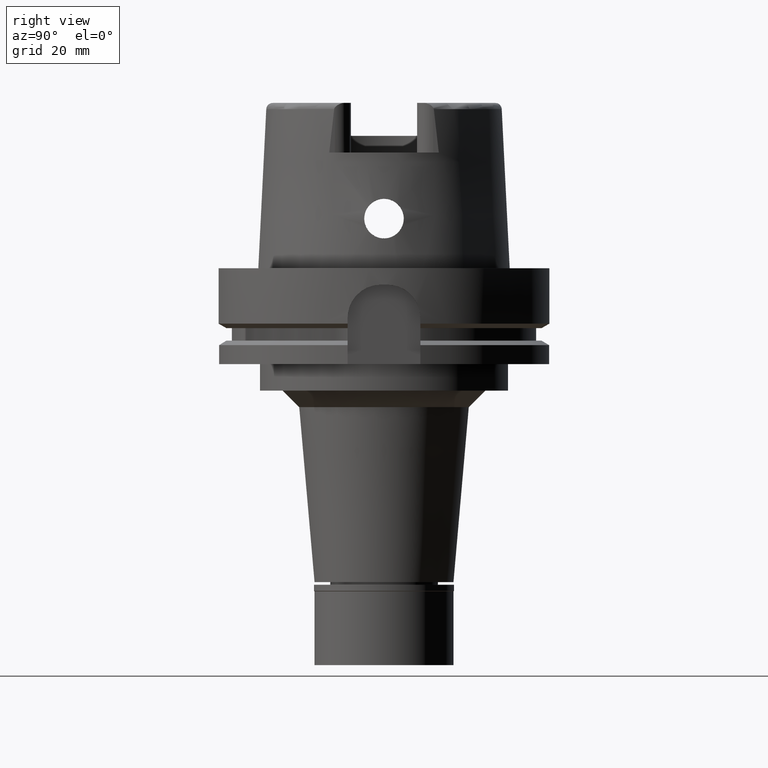
[diagram: clean part render]
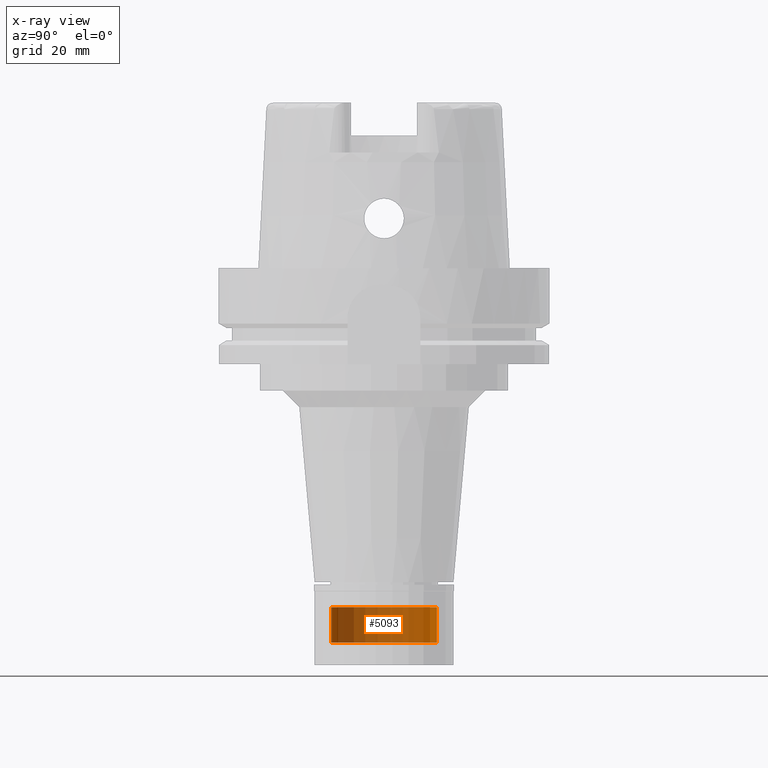
[diagram: x-ray — body ghosted, one internal face saturated and labeled with its STEP entity id]
A machine part, right view, then the same camera in x-ray: the body is ghosted and one INTERNAL B-rep face — a face not visible from any outside direction — is saturated and labeled: STEP entity #5093.
In plain terms, the highlighted cylindrical surface (partial cylindrical patch) has radius 16 mm, axis along (0, 0, -1).
Its self-contained STEP definition (entity closure, byte-faithful):
#304 = AXIS2_PLACEMENT_3D ( 'NONE', #5199, #1337, #913 ) ;
#469 = EDGE_CURVE ( 'NONE', #791, #3298, #2522, .T. ) ;
#522 = VERTEX_POINT ( 'NONE', #538 ) ;
#538 = CARTESIAN_POINT ( 'NONE',  ( 0.0000000000000000000, 16.00000000000000000, -6.799999999999999822 ) ) ;
#755 = CARTESIAN_POINT ( 'NONE',  ( 0.0000000000000000000, 0.0000000000000000000, 0.0000000000000000000 ) ) ;
#791 = VERTEX_POINT ( 'NONE', #4590 ) ;
#827 = ORIENTED_EDGE ( 'NONE', *, *, #4766, .F. ) ;
#860 = LINE ( 'NONE', #2897, #5078 ) ;
#913 = DIRECTION ( 'NONE',  ( 0.0000000000000000000, -1.000000000000000000, 0.0000000000000000000 ) ) ;
#980 = CARTESIAN_POINT ( 'NONE',  ( 0.0000000000000000000, -16.00000000000000000, -6.799999999999999822 ) ) ;
#1107 = ORIENTED_EDGE ( 'NONE', *, *, #2267, .T. ) ;
#1337 = DIRECTION ( 'NONE',  ( 0.0000000000000000000, 0.0000000000000000000, -1.000000000000000000 ) ) ;
#1391 = DIRECTION ( 'NONE',  ( 0.0000000000000000000, 0.0000000000000000000, 1.000000000000000000 ) ) ;
#1474 = CARTESIAN_POINT ( 'NONE',  ( 0.0000000000000000000, 16.00000000000000000, -17.50000000000000000 ) ) ;
#1752 = DIRECTION ( 'NONE',  ( 0.0000000000000000000, 0.0000000000000000000, 1.000000000000000000 ) ) ;
#1929 = EDGE_CURVE ( 'NONE', #522, #4502, #5261, .T. ) ;
#1950 = ORIENTED_EDGE ( 'NONE', *, *, #469, .T. ) ;
#2035 = FACE_OUTER_BOUND ( 'NONE', #2814, .T. ) ;
#2267 = EDGE_CURVE ( 'NONE', #3298, #522, #860, .T. ) ;
#2522 = CIRCLE ( 'NONE', #304, 16.00000000000000000 ) ;
#2606 = VECTOR ( 'NONE', #4748, 1000.000000000000000 ) ;
#2611 = AXIS2_PLACEMENT_3D ( 'NONE', #755, #2840, #4136 ) ;
#2802 = AXIS2_PLACEMENT_3D ( 'NONE', #5207, #1391, #4823 ) ;
#2814 = EDGE_LOOP ( 'NONE', ( #4060, #827, #1950, #1107 ) ) ;
#2840 = DIRECTION ( 'NONE',  ( 0.0000000000000000000, 0.0000000000000000000, -1.000000000000000000 ) ) ;
#2897 = CARTESIAN_POINT ( 'NONE',  ( 0.0000000000000000000, 16.00000000000000000, -17.50000000000000000 ) ) ;
#3298 = VERTEX_POINT ( 'NONE', #1474 ) ;
#3449 = LINE ( 'NONE', #4770, #2606 ) ;
#4060 = ORIENTED_EDGE ( 'NONE', *, *, #1929, .T. ) ;
#4136 = DIRECTION ( 'NONE',  ( 0.0000000000000000000, -1.000000000000000000, 0.0000000000000000000 ) ) ;
#4502 = VERTEX_POINT ( 'NONE', #980 ) ;
#4590 = CARTESIAN_POINT ( 'NONE',  ( 0.0000000000000000000, -16.00000000000000000, -17.50000000000000000 ) ) ;
#4748 = DIRECTION ( 'NONE',  ( 0.0000000000000000000, 0.0000000000000000000, 1.000000000000000000 ) ) ;
#4766 = EDGE_CURVE ( 'NONE', #791, #4502, #3449, .T. ) ;
#4770 = CARTESIAN_POINT ( 'NONE',  ( 0.0000000000000000000, -16.00000000000000000, -17.50000000000000000 ) ) ;
#4823 = DIRECTION ( 'NONE',  ( 0.0000000000000000000, 1.000000000000000000, 0.0000000000000000000 ) ) ;
#5078 = VECTOR ( 'NONE', #1752, 1000.000000000000000 ) ;
#5093 = ADVANCED_FACE ( 'NONE', ( #2035 ), #5116, .F. ) ;
#5116 = CYLINDRICAL_SURFACE ( 'NONE', #2611, 16.00000000000000000 ) ;
#5199 = CARTESIAN_POINT ( 'NONE',  ( 0.0000000000000000000, 0.0000000000000000000, -17.50000000000000000 ) ) ;
#5207 = CARTESIAN_POINT ( 'NONE',  ( 0.0000000000000000000, 0.0000000000000000000, -6.799999999999999822 ) ) ;
#5261 = CIRCLE ( 'NONE', #2802, 16.00000000000000000 ) ;